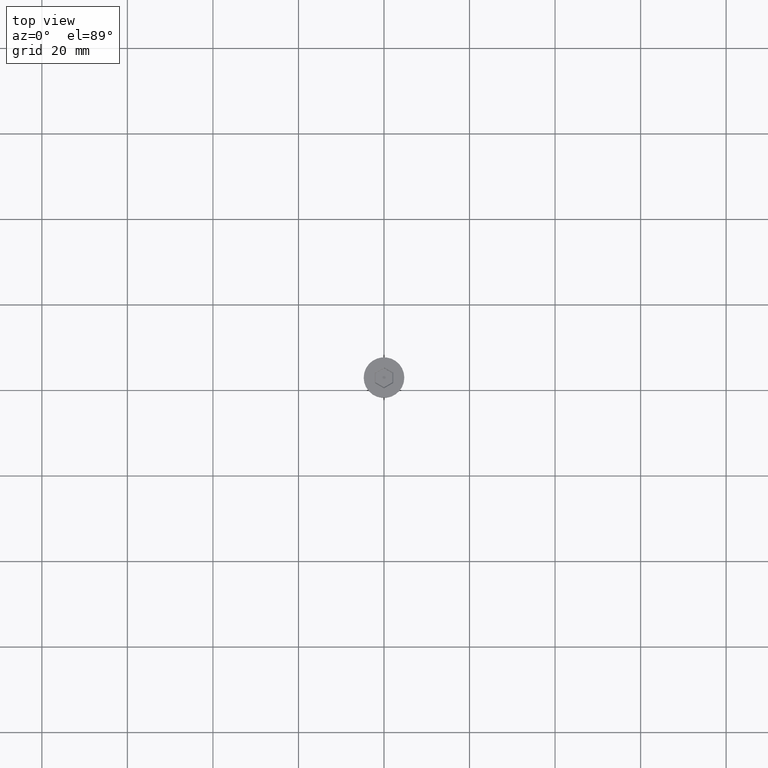
[diagram: clean part render]
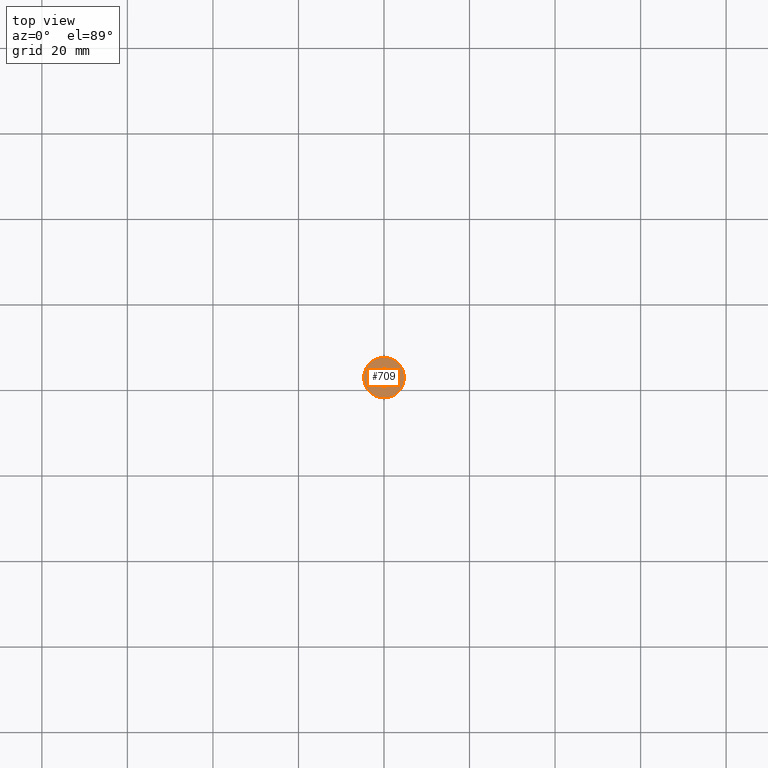
[diagram: same view with one face highlighted and labeled with its STEP entity id]
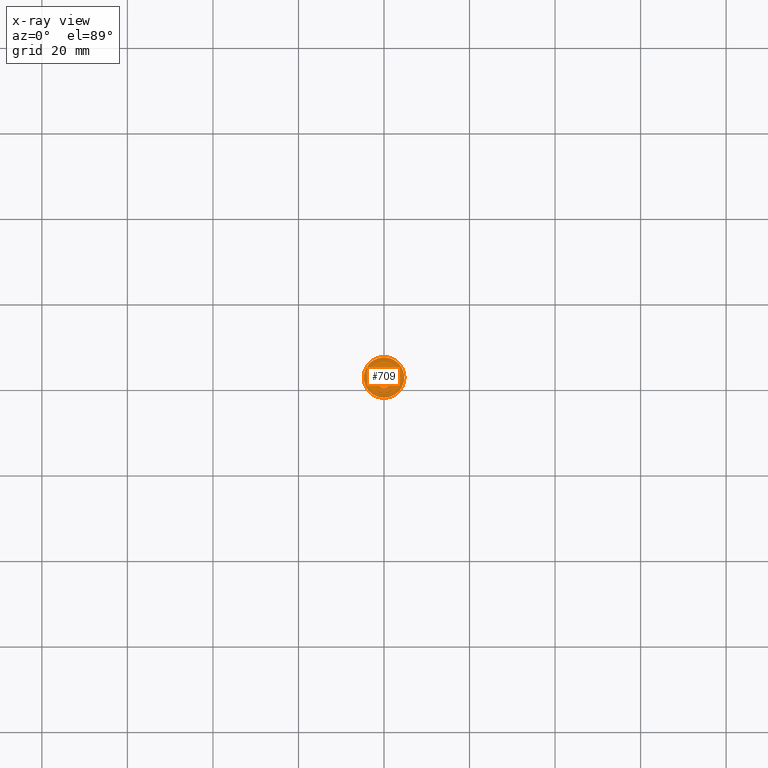
[diagram: x-ray of the same camera — body ghosted, the highlighted face saturated]
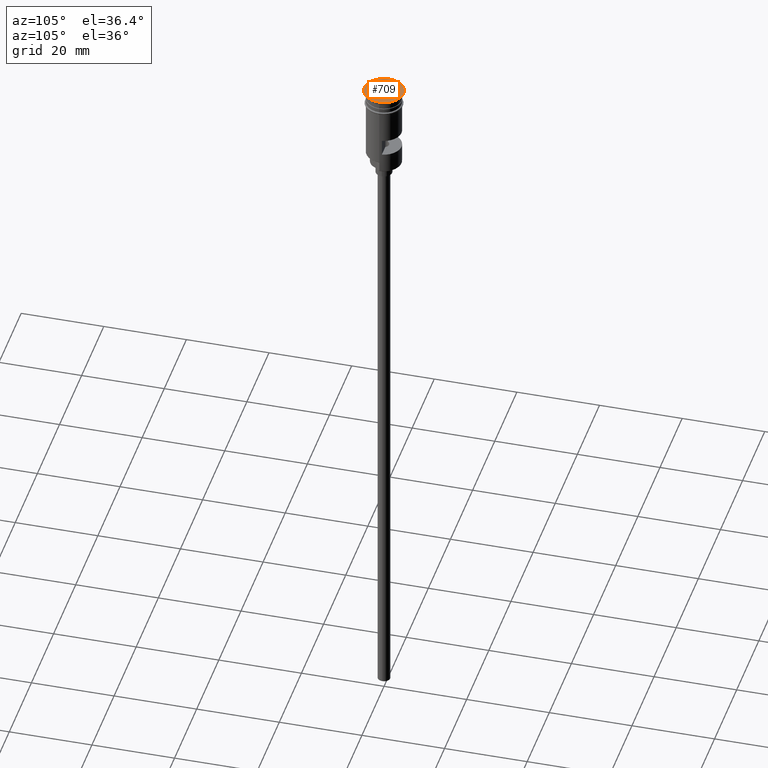
[diagram: same view with one face highlighted and labeled with its STEP entity id]
A machine part, top view. The second image highlights one B-rep face of the part: STEP entity #709.
The next image is the same camera in x-ray: the body ghosted, the highlighted face saturated — about 0% of this face is hidden behind the body in this view.
A second angle (auxiliary view) of the same face is appended — the face is thin or edge-on in the first view.
In plain terms, the highlighted planar face has unit normal (0, -0, 1).
Its self-contained STEP definition (entity closure, byte-faithful):
#26 = DIRECTION ( 'NONE',  ( 0.000000000000000000, -0.000000000000000000, 1.000000000000000000 ) ) ;
#76 = ORIENTED_EDGE ( 'NONE', *, *, #1143, .T. ) ;
#87 = LINE ( 'NONE', #1082, #1181 ) ;
#241 = DIRECTION ( 'NONE',  ( 1.000000000000000000, 0.000000000000000000, 0.000000000000000000 ) ) ;
#294 = LINE ( 'NONE', #1525, #818 ) ;
#303 = DIRECTION ( 'NONE',  ( -0.8660254037844385966, 0.5000000000000001110, 0.000000000000000000 ) ) ;
#367 = DIRECTION ( 'NONE',  ( -0.000000000000000000, -0.000000000000000000, 1.000000000000000000 ) ) ;
#382 = VERTEX_POINT ( 'NONE', #1053 ) ;
#391 = VECTOR ( 'NONE', #966, 1000.000000000000114 ) ;
#426 = VERTEX_POINT ( 'NONE', #430 ) ;
#428 = CARTESIAN_POINT ( 'NONE',  ( -2.149999999999994138, 1.125833024919770109, 0.000000000000000000 ) ) ;
#429 = CARTESIAN_POINT ( 'NONE',  ( -2.149999999999994582, -1.241303078757691303, 0.000000000000000000 ) ) ;
#430 = CARTESIAN_POINT ( 'NONE',  ( 4.750000000000000000, 0.000000000000000000, 0.000000000000000000 ) ) ;
#439 = DIRECTION ( 'NONE',  ( -1.926044357355332218E-16, -1.000000000000000000, 0.000000000000000000 ) ) ;
#459 = LINE ( 'NONE', #1078, #391 ) ;
#461 = DIRECTION ( 'NONE',  ( -0.8660254037844387076, -0.4999999999999998335, 0.000000000000000000 ) ) ;
#464 = CARTESIAN_POINT ( 'NONE',  ( 3.890099324841783067E-16, 2.482606157515383494, 0.000000000000000000 ) ) ;
#482 = PLANE ( 'NONE',  #814 ) ;
#496 = LINE ( 'NONE', #860, #1019 ) ;
#507 = EDGE_CURVE ( 'NONE', #589, #605, #459, .T. ) ;
#513 = FACE_BOUND ( 'NONE', #636, .T. ) ;
#522 = AXIS2_PLACEMENT_3D ( 'NONE', #747, #367, #1236 ) ;
#526 = ORIENTED_EDGE ( 'NONE', *, *, #1404, .T. ) ;
#532 = VERTEX_POINT ( 'NONE', #1593 ) ;
#550 = VECTOR ( 'NONE', #461, 1000.000000000000000 ) ;
#589 = VERTEX_POINT ( 'NONE', #464 ) ;
#592 = ORIENTED_EDGE ( 'NONE', *, *, #1460, .T. ) ;
#599 = VECTOR ( 'NONE', #1022, 1000.000000000000000 ) ;
#605 = VERTEX_POINT ( 'NONE', #1347 ) ;
#636 = EDGE_LOOP ( 'NONE', ( #1027, #1058, #737, #1063, #526, #592 ) ) ;
#657 = AXIS2_PLACEMENT_3D ( 'NONE', #853, #994, #241 ) ;
#709 = ADVANCED_FACE ( 'NONE', ( #513, #1134 ), #482, .T. ) ;
#737 = ORIENTED_EDGE ( 'NONE', *, *, #1101, .T. ) ;
#747 = CARTESIAN_POINT ( 'NONE',  ( 0.000000000000000000, 0.000000000000000000, 0.000000000000000000 ) ) ;
#760 = VERTEX_POINT ( 'NONE', #781 ) ;
#781 = CARTESIAN_POINT ( 'NONE',  ( -4.750000000000000000, 5.817072295949927426E-16, 0.000000000000000000 ) ) ;
#786 = LINE ( 'NONE', #428, #599 ) ;
#814 = AXIS2_PLACEMENT_3D ( 'NONE', #863, #26, #1140 ) ;
#818 = VECTOR ( 'NONE', #303, 1000.000000000000114 ) ;
#824 = CARTESIAN_POINT ( 'NONE',  ( 2.149999999999992806, -1.241303078757692413, 0.000000000000000000 ) ) ;
#853 = CARTESIAN_POINT ( 'NONE',  ( 0.000000000000000000, 0.000000000000000000, 0.000000000000000000 ) ) ;
#860 = CARTESIAN_POINT ( 'NONE',  ( -0.09999999999999692468, 2.424871130596422564, 0.000000000000000000 ) ) ;
#863 = CARTESIAN_POINT ( 'NONE',  ( 0.000000000000000000, 0.000000000000000000, 0.000000000000000000 ) ) ;
#901 = VERTEX_POINT ( 'NONE', #429 ) ;
#946 = CIRCLE ( 'NONE', #522, 4.750000000000000000 ) ;
#966 = DIRECTION ( 'NONE',  ( 0.8660254037844385966, -0.5000000000000001110, 0.000000000000000000 ) ) ;
#994 = DIRECTION ( 'NONE',  ( -0.000000000000000000, -0.000000000000000000, 1.000000000000000000 ) ) ;
#1018 = EDGE_LOOP ( 'NONE', ( #76, #1178 ) ) ;
#1019 = VECTOR ( 'NONE', #1387, 999.9999999999998863 ) ;
#1022 = DIRECTION ( 'NONE',  ( 9.630221786776664787E-17, 1.000000000000000000, 0.000000000000000000 ) ) ;
#1027 = ORIENTED_EDGE ( 'NONE', *, *, #1216, .T. ) ;
#1053 = CARTESIAN_POINT ( 'NONE',  ( -2.149999999999994138, 1.241303078757690859, 0.000000000000000000 ) ) ;
#1058 = ORIENTED_EDGE ( 'NONE', *, *, #1278, .T. ) ;
#1063 = ORIENTED_EDGE ( 'NONE', *, *, #507, .T. ) ;
#1078 = CARTESIAN_POINT ( 'NONE',  ( 2.049999999999996714, 1.299038105676652455, 0.000000000000000000 ) ) ;
#1082 = CARTESIAN_POINT ( 'NONE',  ( 2.149999999999992806, -1.125833024919770331, 0.000000000000000000 ) ) ;
#1101 = EDGE_CURVE ( 'NONE', #382, #589, #496, .T. ) ;
#1134 = FACE_OUTER_BOUND ( 'NONE', #1018, .T. ) ;
#1140 = DIRECTION ( 'NONE',  ( 1.000000000000000000, 0.000000000000000000, 0.000000000000000000 ) ) ;
#1143 = EDGE_CURVE ( 'NONE', #426, #760, #1364, .T. ) ;
#1178 = ORIENTED_EDGE ( 'NONE', *, *, #1523, .T. ) ;
#1181 = VECTOR ( 'NONE', #439, 1000.000000000000000 ) ;
#1213 = LINE ( 'NONE', #1591, #550 ) ;
#1216 = EDGE_CURVE ( 'NONE', #532, #901, #294, .T. ) ;
#1236 = DIRECTION ( 'NONE',  ( 1.000000000000000000, 0.000000000000000000, 0.000000000000000000 ) ) ;
#1278 = EDGE_CURVE ( 'NONE', #901, #382, #786, .T. ) ;
#1347 = CARTESIAN_POINT ( 'NONE',  ( 2.149999999999993250, 1.241303078757691969, 0.000000000000000000 ) ) ;
#1364 = CIRCLE ( 'NONE', #657, 4.750000000000000000 ) ;
#1376 = VERTEX_POINT ( 'NONE', #824 ) ;
#1387 = DIRECTION ( 'NONE',  ( 0.8660254037844385966, 0.5000000000000002220, 0.000000000000000000 ) ) ;
#1404 = EDGE_CURVE ( 'NONE', #605, #1376, #87, .T. ) ;
#1460 = EDGE_CURVE ( 'NONE', #1376, #532, #1213, .T. ) ;
#1523 = EDGE_CURVE ( 'NONE', #760, #426, #946, .T. ) ;
#1525 = CARTESIAN_POINT ( 'NONE',  ( -2.049999999999997602, -1.299038105676652011, 0.000000000000000000 ) ) ;
#1591 = CARTESIAN_POINT ( 'NONE',  ( 0.09999999999999617528, -2.424871130596422564, 0.000000000000000000 ) ) ;
#1593 = CARTESIAN_POINT ( 'NONE',  ( -6.517717499969021618E-16, -2.482606157515383050, 0.000000000000000000 ) ) ;